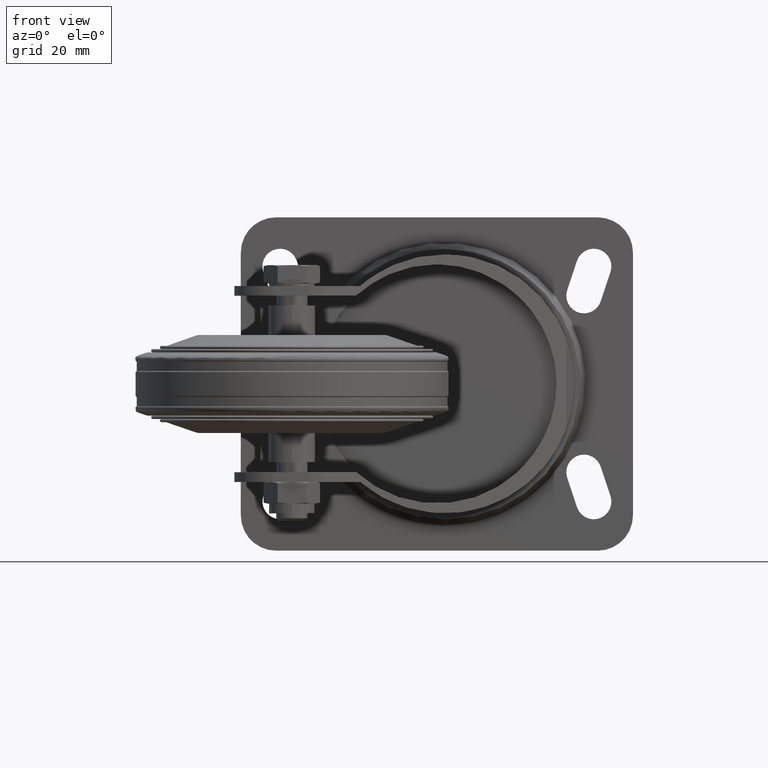
[diagram: clean part render]
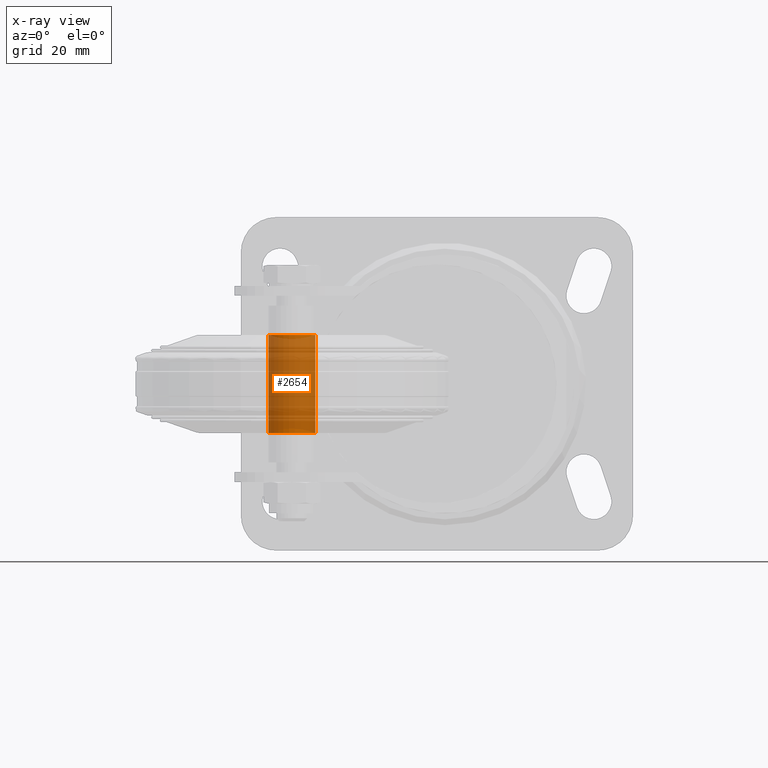
[diagram: x-ray — body ghosted, one internal face saturated and labeled with its STEP entity id]
A machine part, front view, then the same camera in x-ray: the body is ghosted and one INTERNAL B-rep face — a face not visible from any outside direction — is saturated and labeled: STEP entity #2654.
In plain terms, the highlighted cylindrical surface (bore or boss wall) has radius 6 mm, axis along (0, 0, -1).
Its self-contained STEP definition (entity closure, byte-faithful):
#347=LINE('',#4874,#475);
#475=VECTOR('',#3977,6.);
#512=CYLINDRICAL_SURFACE('',#3124,6.);
#681=FACE_OUTER_BOUND('',#888,.T.);
#888=EDGE_LOOP('',(#2445,#2446,#2447,#2448));
#1064=CIRCLE('',#3111,6.);
#1071=CIRCLE('',#3123,6.);
#1342=VERTEX_POINT('',#4852);
#1347=VERTEX_POINT('',#4871);
#1704=EDGE_CURVE('',#1342,#1342,#1064,.T.);
#1713=EDGE_CURVE('',#1347,#1347,#1071,.T.);
#1714=EDGE_CURVE('',#1347,#1342,#347,.T.);
#2445=ORIENTED_EDGE('',*,*,#1713,.F.);
#2446=ORIENTED_EDGE('',*,*,#1714,.T.);
#2447=ORIENTED_EDGE('',*,*,#1704,.T.);
#2448=ORIENTED_EDGE('',*,*,#1714,.F.);
#2654=ADVANCED_FACE('',(#681),#512,.F.);
#3111=AXIS2_PLACEMENT_3D('',#4853,#3947,#3948);
#3123=AXIS2_PLACEMENT_3D('',#4872,#3973,#3974);
#3124=AXIS2_PLACEMENT_3D('',#4873,#3975,#3976);
#3947=DIRECTION('center_axis',(6.12323399573677E-17,0.,-1.));
#3948=DIRECTION('ref_axis',(-1.,0.,-6.12323399573677E-17));
#3973=DIRECTION('center_axis',(6.12323399573677E-17,0.,-1.));
#3974=DIRECTION('ref_axis',(-1.,0.,-6.12323399573677E-17));
#3975=DIRECTION('center_axis',(6.12323399573677E-17,0.,-1.));
#3976=DIRECTION('ref_axis',(-1.,0.,-6.12323399573677E-17));
#3977=DIRECTION('',(6.12323399573677E-17,0.,-1.));
#4852=CARTESIAN_POINT('',(6.,-7.34788079488412E-16,-12.5));
#4853=CARTESIAN_POINT('Origin',(7.65404249467096E-16,0.,-12.5));
#4871=CARTESIAN_POINT('',(6.,-7.34788079488412E-16,12.5));
#4872=CARTESIAN_POINT('Origin',(-7.65404249467096E-16,0.,12.5));
#4873=CARTESIAN_POINT('Origin',(7.65404249467096E-16,0.,-12.5));
#4874=CARTESIAN_POINT('',(6.,-7.34788079488412E-16,-12.5));